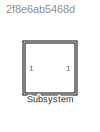
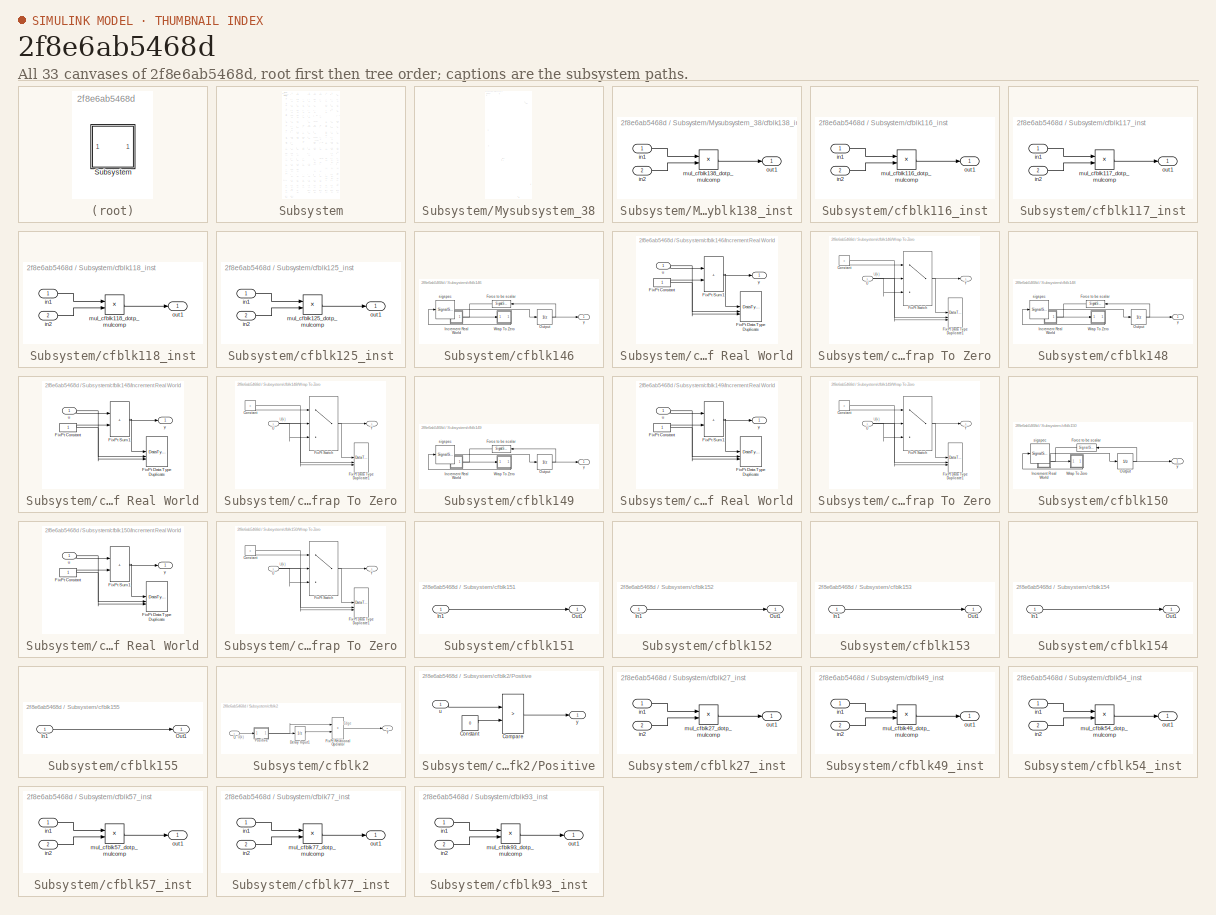
[diagram: thumbnail index - all 33 canvases of the model, root first then tree order]
MODEL slx_2f8e6ab5468d
KIND model
CONFIG AbsTol = auto
CONFIG EnableMultiTasking = off
CONFIG FixedStep = auto
CONFIG MaxStep = auto
CONFIG MinStep = auto
CONFIG RelTol = 1e-3
CONFIG SampleTimeConstraint = Unconstrained
CONFIG SolverName = VariableStepAuto
CONFIG StartTime = 0.0
CONFIG StopTime = 10.0
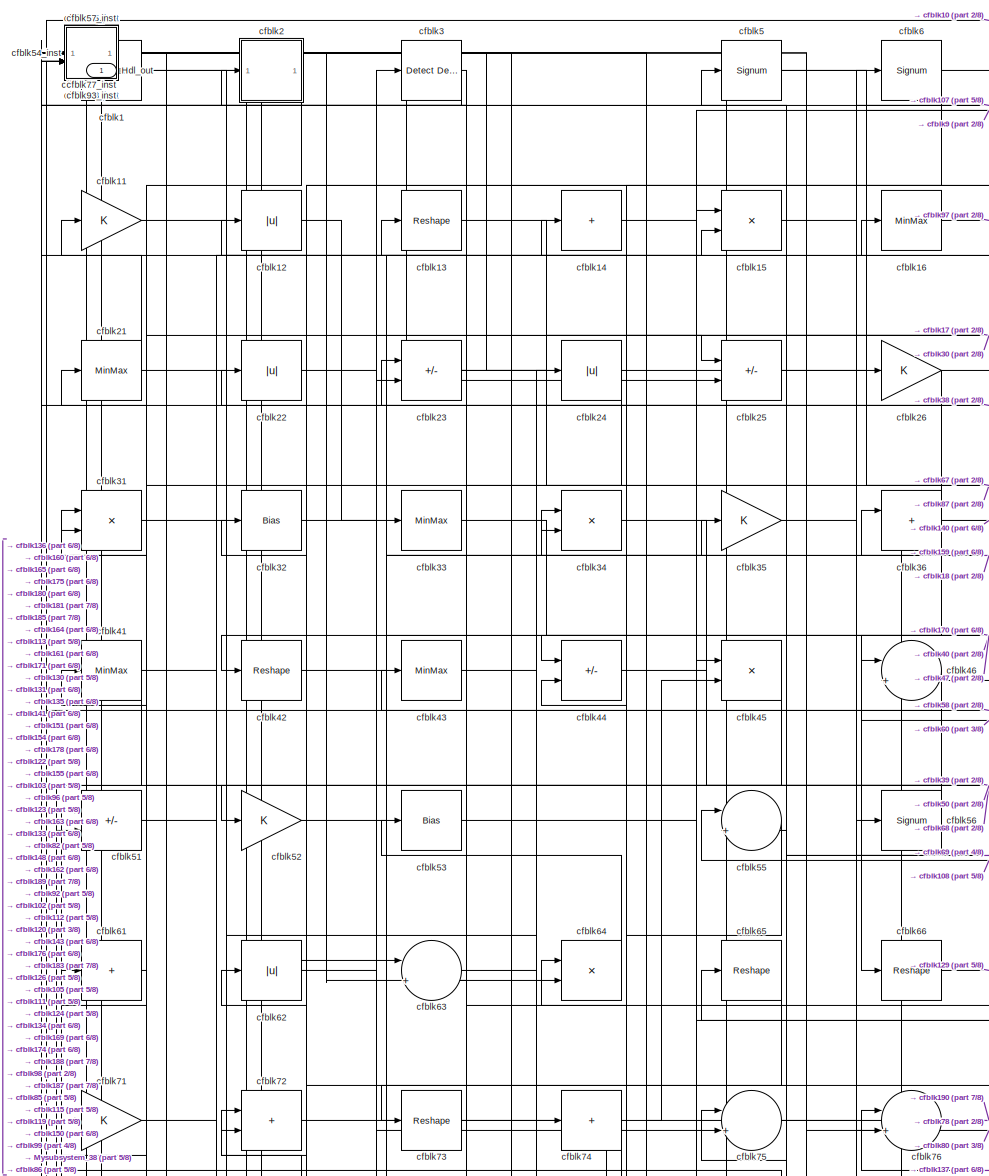
[diagram: Subsystem - part 1/8, top left region]
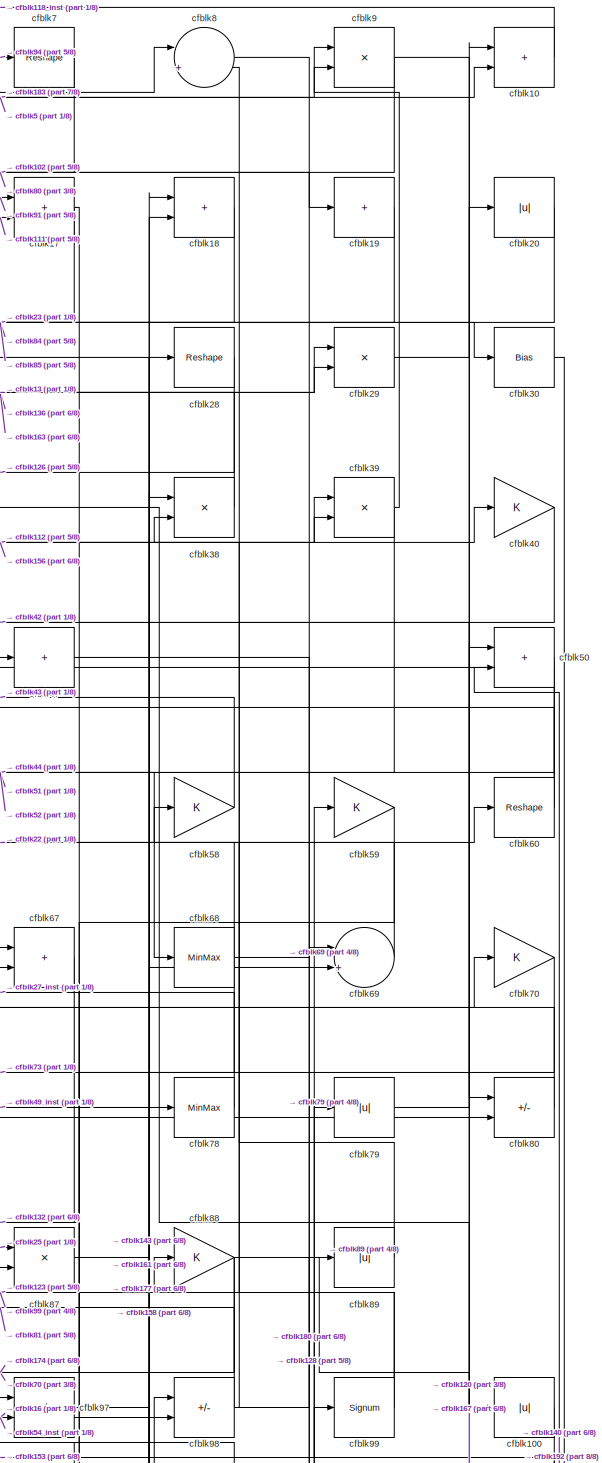
[diagram: Subsystem - part 2/8, top right region]
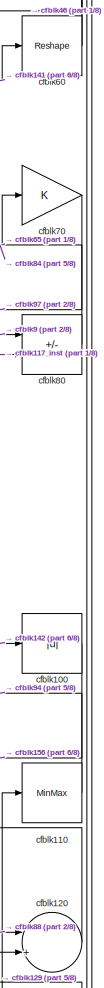
[diagram: Subsystem - part 3/8, middle right region]
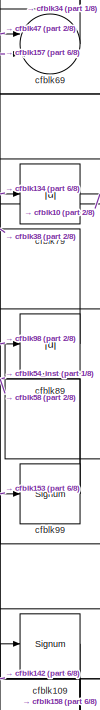
[diagram: Subsystem - part 4/8, middle right region]
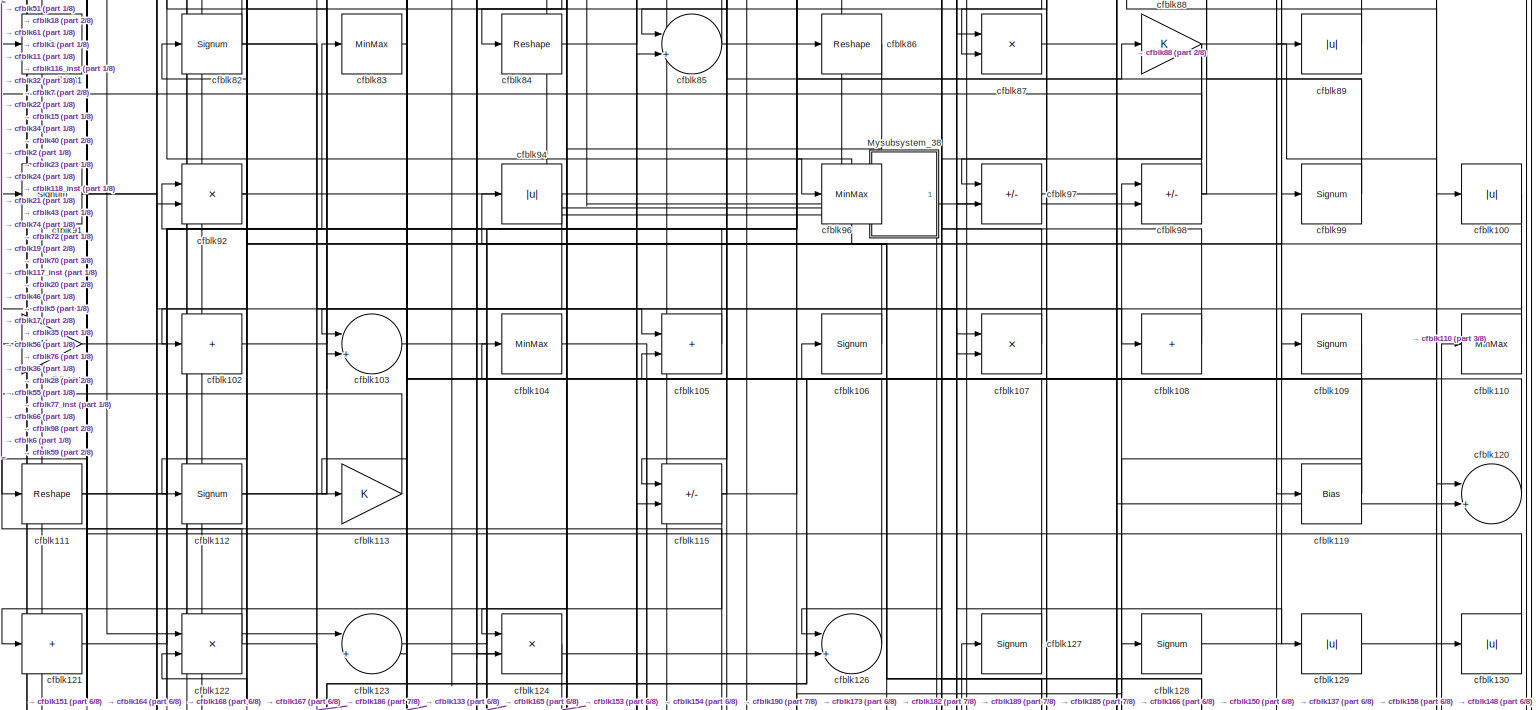
[diagram: Subsystem - part 5/8, full width, middle band]
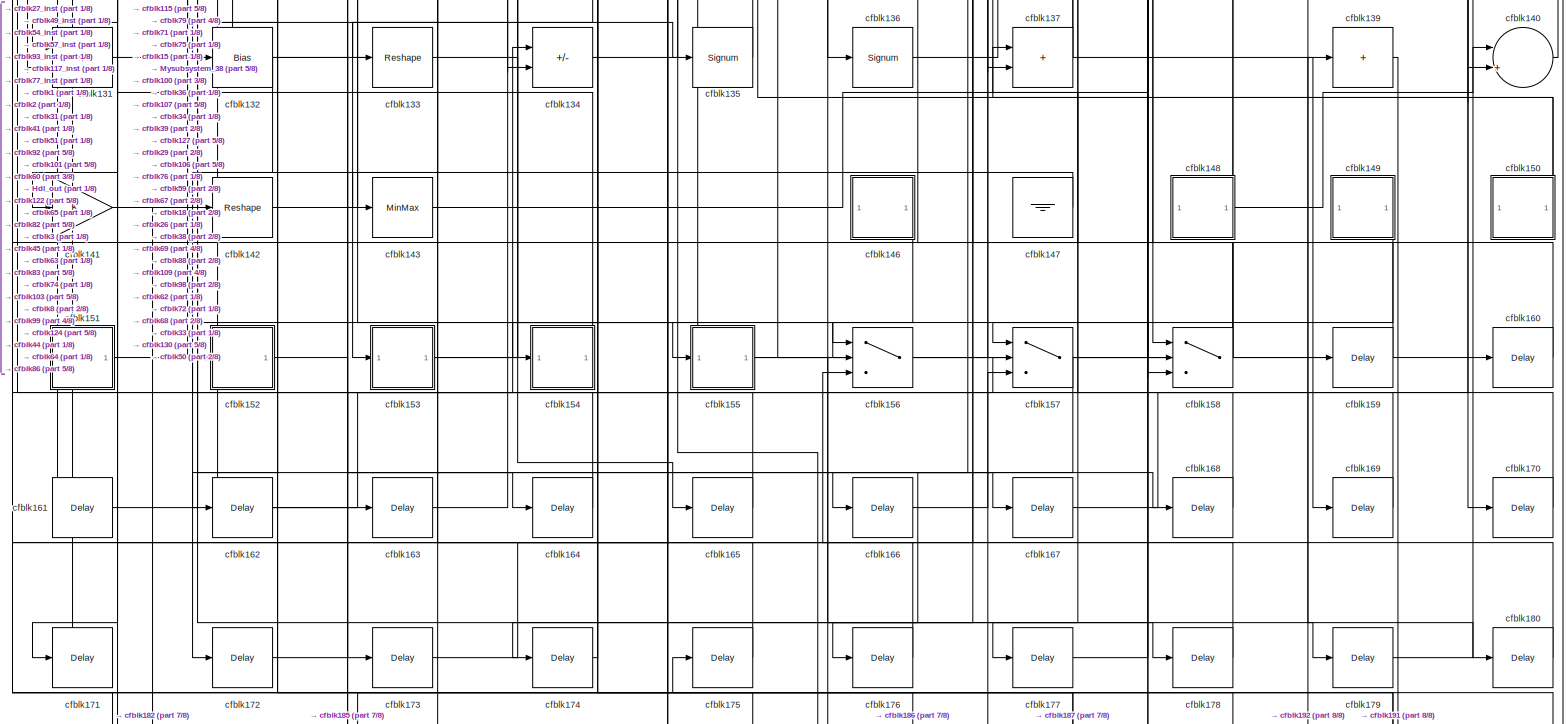
[diagram: Subsystem - part 6/8, full width, bottom band]
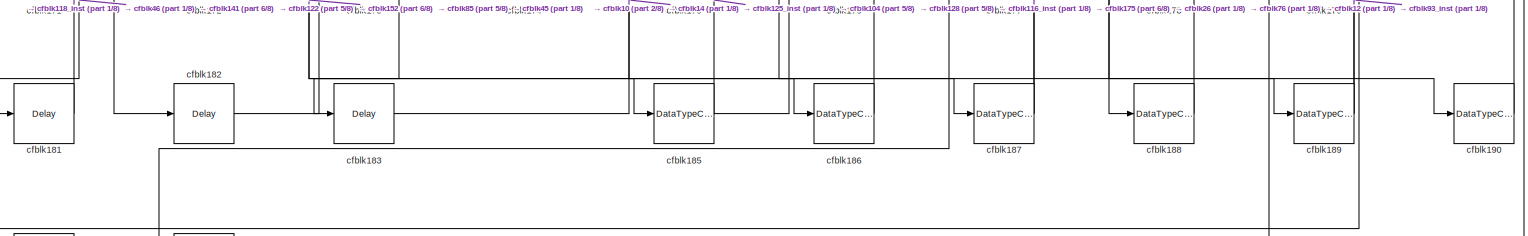
[diagram: Subsystem - part 7/8, full width, bottom band]
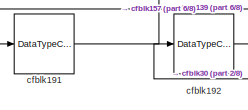
[diagram: Subsystem - part 8/8, bottom left region]
BLOCK [SubSystem] Subsystem
BLOCK [Outport] Subsystem/Hdl_out
  OutDataTypeStr = uint8
  SampleTime = 1
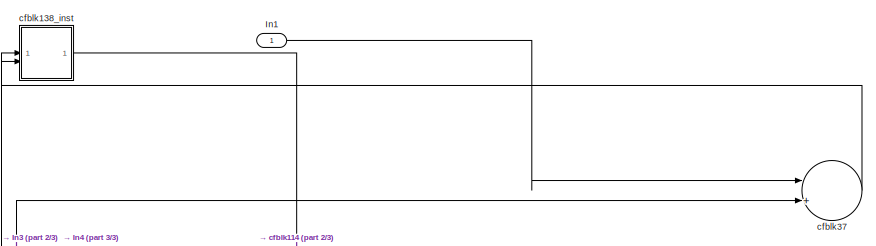
[diagram: Subsystem/Mysubsystem_38 - part 1/3, full width, top band]
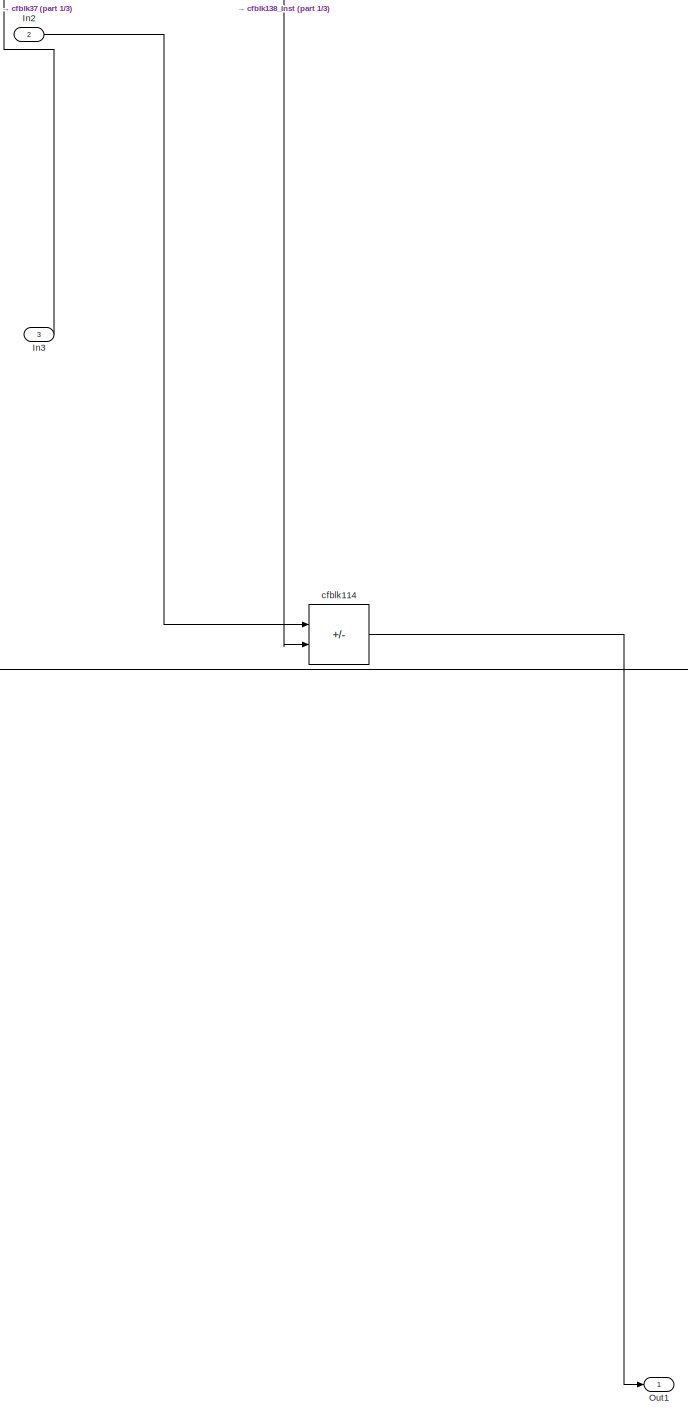
[diagram: Subsystem/Mysubsystem_38 - part 2/3, bottom center region]
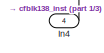
[diagram: Subsystem/Mysubsystem_38 - part 3/3, bottom right region]
BLOCK [SubSystem] Subsystem/Mysubsystem_38
BLOCK [Inport] Subsystem/Mysubsystem_38/In1
  OutDataTypeStr = uint8
  PortDimensions = 1
  SampleTime = 1
BLOCK [Inport] Subsystem/Mysubsystem_38/In2
  OutDataTypeStr = uint8
  Port = 2
  PortDimensions = 1
  SampleTime = 1
BLOCK [Inport] Subsystem/Mysubsystem_38/In3
  OutDataTypeStr = uint8
  Port = 3
  PortDimensions = 1
  SampleTime = 1
BLOCK [Inport] Subsystem/Mysubsystem_38/In4
  OutDataTypeStr = uint8
  Port = 4
  PortDimensions = 1
  SampleTime = 1
BLOCK [Outport] Subsystem/Mysubsystem_38/Out1
  SampleTime = 1
BLOCK [Sum] Subsystem/Mysubsystem_38/cfblk114
  IconShape = rectangular
  Inputs = +-
BLOCK [SubSystem] Subsystem/Mysubsystem_38/cfblk138_inst
BLOCK [Inport] Subsystem/Mysubsystem_38/cfblk138_inst/in1
  OutDataTypeStr = uint8
  SampleTime = 1
BLOCK [Inport] Subsystem/Mysubsystem_38/cfblk138_inst/in2
  OutDataTypeStr = uint8
  Port = 2
  SampleTime = 1
BLOCK [Product] Subsystem/Mysubsystem_38/cfblk138_inst/mul_cfblk138_dotp_mulcomp
  Inputs = **
  OutDataTypeStr = uint16
  SampleTime = 1
BLOCK [Outport] Subsystem/Mysubsystem_38/cfblk138_inst/out1
  OutDataTypeStr = uint16
  SampleTime = 1
BLOCK [Sum] Subsystem/Mysubsystem_38/cfblk37
  Inputs = |++
BLOCK [Reference] Subsystem/cfblk1  REF=simulink/Logic and Bit
Operations/Bit Set
  LibrarySourceBlock = hdlsllib/Logic and Bit\nOperations/Bit Set
  SourceBlock = simulink/Logic and Bit\nOperations/Bit Set
  SourceType = Bit Set
BLOCK [Sum] Subsystem/cfblk10
  IconShape = rectangular
  OutDataTypeStr = uint8
BLOCK [Abs] Subsystem/cfblk100
  OutDataTypeStr = uint8
  SaturateOnIntegerOverflow = off
BLOCK [Gain] Subsystem/cfblk101
  OutDataTypeStr = uint8
BLOCK [Sum] Subsystem/cfblk102
  IconShape = rectangular
  Inputs = +
  OutDataTypeStr = uint8
BLOCK [Sum] Subsystem/cfblk103
  Inputs = |++
  OutDataTypeStr = uint8
BLOCK [MinMax] Subsystem/cfblk104
  OutDataTypeStr = uint8
BLOCK [Sum] Subsystem/cfblk105
  IconShape = rectangular
  OutDataTypeStr = uint8
BLOCK [Signum] Subsystem/cfblk106
BLOCK [Product] Subsystem/cfblk107
  Inputs = */
  OutDataTypeStr = uint8
  RndMeth = Zero
  SaturateOnIntegerOverflow = on
BLOCK [Sum] Subsystem/cfblk108
  IconShape = rectangular
  Inputs = +
  OutDataTypeStr = uint8
BLOCK [Signum] Subsystem/cfblk109
BLOCK [Gain] Subsystem/cfblk11
  OutDataTypeStr = uint8
BLOCK [MinMax] Subsystem/cfblk110
  OutDataTypeStr = uint8
BLOCK [Reshape] Subsystem/cfblk111
BLOCK [Signum] Subsystem/cfblk112
BLOCK [Gain] Subsystem/cfblk113
  OutDataTypeStr = uint8
BLOCK [Sum] Subsystem/cfblk115
  IconShape = rectangular
  Inputs = +-
  OutDataTypeStr = uint8
BLOCK [SubSystem] Subsystem/cfblk116_inst
BLOCK [Inport] Subsystem/cfblk116_inst/in1
  OutDataTypeStr = uint8
  SampleTime = 1
BLOCK [Inport] Subsystem/cfblk116_inst/in2
  OutDataTypeStr = uint8
  Port = 2
  SampleTime = 1
BLOCK [Product] Subsystem/cfblk116_inst/mul_cfblk116_dotp_mulcomp
  Inputs = **
  OutDataTypeStr = uint8
  SampleTime = 1
BLOCK [Outport] Subsystem/cfblk116_inst/out1
  OutDataTypeStr = uint8
  SampleTime = 1
BLOCK [SubSystem] Subsystem/cfblk117_inst
BLOCK [Inport] Subsystem/cfblk117_inst/in1
  OutDataTypeStr = uint8
  SampleTime = 1
BLOCK [Inport] Subsystem/cfblk117_inst/in2
  OutDataTypeStr = uint8
  Port = 2
  SampleTime = 1
BLOCK [Product] Subsystem/cfblk117_inst/mul_cfblk117_dotp_mulcomp
  Inputs = **
  OutDataTypeStr = uint8
  SampleTime = 1
BLOCK [Outport] Subsystem/cfblk117_inst/out1
  OutDataTypeStr = uint8
  SampleTime = 1
BLOCK [SubSystem] Subsystem/cfblk118_inst
BLOCK [Inport] Subsystem/cfblk118_inst/in1
  OutDataTypeStr = uint8
  SampleTime = 1
BLOCK [Inport] Subsystem/cfblk118_inst/in2
  OutDataTypeStr = uint8
  Port = 2
  SampleTime = 1
BLOCK [Product] Subsystem/cfblk118_inst/mul_cfblk118_dotp_mulcomp
  Inputs = **
  OutDataTypeStr = uint8
  SampleTime = 1
BLOCK [Outport] Subsystem/cfblk118_inst/out1
  OutDataTypeStr = uint8
  SampleTime = 1
BLOCK [Bias] Subsystem/cfblk119
  Bias = 0.0
  SaturateOnIntegerOverflow = off
BLOCK [Abs] Subsystem/cfblk12
  OutDataTypeStr = uint8
  SaturateOnIntegerOverflow = off
BLOCK [Sum] Subsystem/cfblk120
  Inputs = |++
  OutDataTypeStr = uint8
BLOCK [Sum] Subsystem/cfblk121
  IconShape = rectangular
  Inputs = +
  OutDataTypeStr = uint8
BLOCK [Product] Subsystem/cfblk122
  Inputs = */
  OutDataTypeStr = uint8
  RndMeth = Zero
  SaturateOnIntegerOverflow = on
BLOCK [Sum] Subsystem/cfblk123
  Inputs = |++
  OutDataTypeStr = uint8
BLOCK [Product] Subsystem/cfblk124
  Inputs = */
  OutDataTypeStr = uint8
  RndMeth = Zero
  SaturateOnIntegerOverflow = on
BLOCK [SubSystem] Subsystem/cfblk125_inst
BLOCK [Inport] Subsystem/cfblk125_inst/in1
  OutDataTypeStr = uint8
  SampleTime = 1
BLOCK [Inport] Subsystem/cfblk125_inst/in2
  OutDataTypeStr = uint8
  Port = 2
  SampleTime = 1
BLOCK [Product] Subsystem/cfblk125_inst/mul_cfblk125_dotp_mulcomp
  Inputs = **
  OutDataTypeStr = uint8
  SampleTime = 1
BLOCK [Outport] Subsystem/cfblk125_inst/out1
  OutDataTypeStr = uint8
  SampleTime = 1
BLOCK [Sum] Subsystem/cfblk126
  Inputs = |++
  OutDataTypeStr = uint8
BLOCK [Signum] Subsystem/cfblk127
BLOCK [Signum] Subsystem/cfblk128
BLOCK [Abs] Subsystem/cfblk129
  OutDataTypeStr = uint8
  SaturateOnIntegerOverflow = off
BLOCK [Reshape] Subsystem/cfblk13
BLOCK [Abs] Subsystem/cfblk130
  OutDataTypeStr = uint8
  SaturateOnIntegerOverflow = off
BLOCK [Sum] Subsystem/cfblk131
  IconShape = rectangular
  Inputs = +-
  OutDataTypeStr = uint8
BLOCK [Bias] Subsystem/cfblk132
  Bias = 0.0
  SaturateOnIntegerOverflow = off
BLOCK [Reshape] Subsystem/cfblk133
BLOCK [Sum] Subsystem/cfblk134
  IconShape = rectangular
  Inputs = +-
  OutDataTypeStr = uint8
BLOCK [Signum] Subsystem/cfblk135
BLOCK [Signum] Subsystem/cfblk136
BLOCK [Sum] Subsystem/cfblk137
  IconShape = rectangular
  OutDataTypeStr = uint8
BLOCK [Sum] Subsystem/cfblk139
  IconShape = rectangular
  Inputs = +
  OutDataTypeStr = uint8
BLOCK [Sum] Subsystem/cfblk14
  IconShape = rectangular
  Inputs = +
  OutDataTypeStr = uint8
BLOCK [Sum] Subsystem/cfblk140
  Inputs = |++
  OutDataTypeStr = uint8
BLOCK [Gain] Subsystem/cfblk141
  OutDataTypeStr = uint8
BLOCK [Reshape] Subsystem/cfblk142
BLOCK [MinMax] Subsystem/cfblk143
  OutDataTypeStr = uint8
BLOCK [SubSystem] Subsystem/cfblk146
BLOCK [SignalSpecification] Subsystem/cfblk146/Force to be scalar
  Dimensions = 1
  DisableCoverage = on
BLOCK [SubSystem] Subsystem/cfblk146/Increment Real World
BLOCK [Constant] Subsystem/cfblk146/Increment Real World/FixPt Constant
  DisableCoverage = on
  OutDataTypeStr = Inherit: Inherit via back propagation
  SampleTime = -1
BLOCK [DataTypeDuplicate] Subsystem/cfblk146/Increment Real World/FixPt Data Type Duplicate
  DisableCoverage = on
  NumInputPorts = 3
BLOCK [Sum] Subsystem/cfblk146/Increment Real World/FixPt Sum1
  IconShape = rectangular
  InputSameDT = on
  LockScale = on
  OutDataTypeStr = Inherit: Inherit via back propagation
BLOCK [Inport] Subsystem/cfblk146/Increment Real World/u
  OutDataTypeStr = uint8
  SampleTime = 1
BLOCK [Outport] Subsystem/cfblk146/Increment Real World/y
  SampleTime = 1
BLOCK [UnitDelay] Subsystem/cfblk146/Output
  HasFrameUpgradeWarning = on
  InitialCondition = 0.0
  SampleTime = tsamp
BLOCK [SubSystem] Subsystem/cfblk146/Wrap To Zero
BLOCK [Constant] Subsystem/cfblk146/Wrap To Zero/Constant
  DisableCoverage = on
  OutDataTypeStr = Inherit: Inherit via back propagation
  SampleTime = -1
  Value = 0
BLOCK [DataTypeDuplicate] Subsystem/cfblk146/Wrap To Zero/FixPt Data Type Duplicate1
  DisableCoverage = on
  NumInputPorts = 3
BLOCK [Switch] Subsystem/cfblk146/Wrap To Zero/FixPt Switch
  Criteria = u2 > Threshold
  InputSameDT = off
  OutDataTypeStr = Inherit: Inherit via back propagation
  SaturateOnIntegerOverflow = off
  Threshold = Threshold
  ZeroCross = off
BLOCK [Inport] Subsystem/cfblk146/Wrap To Zero/U
  OutDataTypeStr = uint8
  SampleTime = 1
BLOCK [Outport] Subsystem/cfblk146/Wrap To Zero/Y
  SampleTime = 1
BLOCK [SignalSpecification] Subsystem/cfblk146/sigspec
  Dimensions = 1
  OutDataTypeStr = uint8
BLOCK [Outport] Subsystem/cfblk146/y
  SampleTime = 1
BLOCK [Ground] Subsystem/cfblk147
BLOCK [SubSystem] Subsystem/cfblk148
BLOCK [SignalSpecification] Subsystem/cfblk148/Force to be scalar
  Dimensions = 1
  DisableCoverage = on
BLOCK [SubSystem] Subsystem/cfblk148/Increment Real World
BLOCK [Constant] Subsystem/cfblk148/Increment Real World/FixPt Constant
  DisableCoverage = on
  OutDataTypeStr = Inherit: Inherit via back propagation
  SampleTime = -1
BLOCK [DataTypeDuplicate] Subsystem/cfblk148/Increment Real World/FixPt Data Type Duplicate
  DisableCoverage = on
  NumInputPorts = 3
BLOCK [Sum] Subsystem/cfblk148/Increment Real World/FixPt Sum1
  IconShape = rectangular
  InputSameDT = on
  LockScale = on
  OutDataTypeStr = Inherit: Inherit via back propagation
BLOCK [Inport] Subsystem/cfblk148/Increment Real World/u
  OutDataTypeStr = uint8
  SampleTime = 1
BLOCK [Outport] Subsystem/cfblk148/Increment Real World/y
  SampleTime = 1
BLOCK [UnitDelay] Subsystem/cfblk148/Output
  HasFrameUpgradeWarning = on
  InitialCondition = 0.0
  SampleTime = tsamp
BLOCK [SubSystem] Subsystem/cfblk148/Wrap To Zero
BLOCK [Constant] Subsystem/cfblk148/Wrap To Zero/Constant
  DisableCoverage = on
  OutDataTypeStr = Inherit: Inherit via back propagation
  SampleTime = -1
  Value = 0
BLOCK [DataTypeDuplicate] Subsystem/cfblk148/Wrap To Zero/FixPt Data Type Duplicate1
  DisableCoverage = on
  NumInputPorts = 3
BLOCK [Switch] Subsystem/cfblk148/Wrap To Zero/FixPt Switch
  Criteria = u2 > Threshold
  InputSameDT = off
  OutDataTypeStr = Inherit: Inherit via back propagation
  SaturateOnIntegerOverflow = off
  Threshold = Threshold
  ZeroCross = off
BLOCK [Inport] Subsystem/cfblk148/Wrap To Zero/U
  OutDataTypeStr = uint8
  SampleTime = 1
BLOCK [Outport] Subsystem/cfblk148/Wrap To Zero/Y
  SampleTime = 1
BLOCK [SignalSpecification] Subsystem/cfblk148/sigspec
  Dimensions = 1
  OutDataTypeStr = uint8
BLOCK [Outport] Subsystem/cfblk148/y
  SampleTime = 1
BLOCK [SubSystem] Subsystem/cfblk149
BLOCK [SignalSpecification] Subsystem/cfblk149/Force to be scalar
  Dimensions = 1
  DisableCoverage = on
BLOCK [SubSystem] Subsystem/cfblk149/Increment Real World
BLOCK [Constant] Subsystem/cfblk149/Increment Real World/FixPt Constant
  DisableCoverage = on
  OutDataTypeStr = Inherit: Inherit via back propagation
  SampleTime = -1
BLOCK [DataTypeDuplicate] Subsystem/cfblk149/Increment Real World/FixPt Data Type Duplicate
  DisableCoverage = on
  NumInputPorts = 3
BLOCK [Sum] Subsystem/cfblk149/Increment Real World/FixPt Sum1
  IconShape = rectangular
  InputSameDT = on
  LockScale = on
  OutDataTypeStr = Inherit: Inherit via back propagation
BLOCK [Inport] Subsystem/cfblk149/Increment Real World/u
  OutDataTypeStr = uint8
  SampleTime = 1
BLOCK [Outport] Subsystem/cfblk149/Increment Real World/y
  SampleTime = 1
BLOCK [UnitDelay] Subsystem/cfblk149/Output
  HasFrameUpgradeWarning = on
  InitialCondition = 0.0
  SampleTime = tsamp
BLOCK [SubSystem] Subsystem/cfblk149/Wrap To Zero
BLOCK [Constant] Subsystem/cfblk149/Wrap To Zero/Constant
  DisableCoverage = on
  OutDataTypeStr = Inherit: Inherit via back propagation
  SampleTime = -1
  Value = 0
BLOCK [DataTypeDuplicate] Subsystem/cfblk149/Wrap To Zero/FixPt Data Type Duplicate1
  DisableCoverage = on
  NumInputPorts = 3
BLOCK [Switch] Subsystem/cfblk149/Wrap To Zero/FixPt Switch
  Criteria = u2 > Threshold
  InputSameDT = off
  OutDataTypeStr = Inherit: Inherit via back propagation
  SaturateOnIntegerOverflow = off
  Threshold = Threshold
  ZeroCross = off
BLOCK [Inport] Subsystem/cfblk149/Wrap To Zero/U
  OutDataTypeStr = uint8
  SampleTime = 1
BLOCK [Outport] Subsystem/cfblk149/Wrap To Zero/Y
  SampleTime = 1
BLOCK [SignalSpecification] Subsystem/cfblk149/sigspec
  Dimensions = 1
  OutDataTypeStr = uint8
BLOCK [Outport] Subsystem/cfblk149/y
  SampleTime = 1
BLOCK [Product] Subsystem/cfblk15
  Inputs = */
  OutDataTypeStr = uint8
  RndMeth = Zero
  SaturateOnIntegerOverflow = on
BLOCK [SubSystem] Subsystem/cfblk150
BLOCK [SignalSpecification] Subsystem/cfblk150/Force to be scalar
  Dimensions = 1
  DisableCoverage = on
BLOCK [SubSystem] Subsystem/cfblk150/Increment Real World
BLOCK [Constant] Subsystem/cfblk150/Increment Real World/FixPt Constant
  DisableCoverage = on
  OutDataTypeStr = Inherit: Inherit via back propagation
  SampleTime = -1
BLOCK [DataTypeDuplicate] Subsystem/cfblk150/Increment Real World/FixPt Data Type Duplicate
  DisableCoverage = on
  NumInputPorts = 3
BLOCK [Sum] Subsystem/cfblk150/Increment Real World/FixPt Sum1
  IconShape = rectangular
  InputSameDT = on
  LockScale = on
  OutDataTypeStr = Inherit: Inherit via back propagation
BLOCK [Inport] Subsystem/cfblk150/Increment Real World/u
  OutDataTypeStr = uint16
  SampleTime = 1
BLOCK [Outport] Subsystem/cfblk150/Increment Real World/y
  SampleTime = 1
BLOCK [UnitDelay] Subsystem/cfblk150/Output
  HasFrameUpgradeWarning = on
  InitialCondition = 0.0
  SampleTime = tsamp
BLOCK [SubSystem] Subsystem/cfblk150/Wrap To Zero
BLOCK [Constant] Subsystem/cfblk150/Wrap To Zero/Constant
  DisableCoverage = on
  OutDataTypeStr = Inherit: Inherit via back propagation
  SampleTime = -1
  Value = 0
BLOCK [DataTypeDuplicate] Subsystem/cfblk150/Wrap To Zero/FixPt Data Type Duplicate1
  DisableCoverage = on
  NumInputPorts = 3
BLOCK [Switch] Subsystem/cfblk150/Wrap To Zero/FixPt Switch
  Criteria = u2 > Threshold
  InputSameDT = off
  OutDataTypeStr = Inherit: Inherit via back propagation
  SaturateOnIntegerOverflow = off
  Threshold = Threshold
  ZeroCross = off
BLOCK [Inport] Subsystem/cfblk150/Wrap To Zero/U
  OutDataTypeStr = uint16
  SampleTime = 1
BLOCK [Outport] Subsystem/cfblk150/Wrap To Zero/Y
  SampleTime = 1
BLOCK [SignalSpecification] Subsystem/cfblk150/sigspec
  Dimensions = 1
  OutDataTypeStr = uint16
BLOCK [Outport] Subsystem/cfblk150/y
  SampleTime = 1
BLOCK [SubSystem] Subsystem/cfblk151
BLOCK [Inport] Subsystem/cfblk151/In1
  OutDataTypeStr = uint8
  PortDimensions = 1
  SampleTime = 1
BLOCK [Outport] Subsystem/cfblk151/Out1
  SampleTime = 1
BLOCK [SubSystem] Subsystem/cfblk152
BLOCK [Inport] Subsystem/cfblk152/In1
  OutDataTypeStr = uint8
  PortDimensions = 1
  SampleTime = 1
BLOCK [Outport] Subsystem/cfblk152/Out1
  SampleTime = 1
BLOCK [SubSystem] Subsystem/cfblk153
BLOCK [Inport] Subsystem/cfblk153/In1
  OutDataTypeStr = uint8
  PortDimensions = 1
  SampleTime = 1
BLOCK [Outport] Subsystem/cfblk153/Out1
  SampleTime = 1
BLOCK [SubSystem] Subsystem/cfblk154
BLOCK [Inport] Subsystem/cfblk154/In1
  OutDataTypeStr = uint8
  PortDimensions = 1
  SampleTime = 1
BLOCK [Outport] Subsystem/cfblk154/Out1
  SampleTime = 1
BLOCK [SubSystem] Subsystem/cfblk155
BLOCK [Inport] Subsystem/cfblk155/In1
  OutDataTypeStr = uint8
  PortDimensions = 1
  SampleTime = 1
BLOCK [Outport] Subsystem/cfblk155/Out1
  SampleTime = 1
BLOCK [Switch] Subsystem/cfblk156
  InputSameDT = off
  OutDataTypeStr = uint8
  SaturateOnIntegerOverflow = off
BLOCK [Switch] Subsystem/cfblk157
  InputSameDT = off
  OutDataTypeStr = uint8
  SaturateOnIntegerOverflow = off
BLOCK [Switch] Subsystem/cfblk158
  InputSameDT = off
  OutDataTypeStr = uint8
  SaturateOnIntegerOverflow = off
BLOCK [Delay] Subsystem/cfblk159
  InputPortMap = u0
  SampleTime = 1
BLOCK [MinMax] Subsystem/cfblk16
  OutDataTypeStr = uint8
BLOCK [Delay] Subsystem/cfblk160
  InputPortMap = u0
  SampleTime = 1
BLOCK [Delay] Subsystem/cfblk161
  InputPortMap = u0
  SampleTime = 1
BLOCK [Delay] Subsystem/cfblk162
  InputPortMap = u0
  SampleTime = 1
BLOCK [Delay] Subsystem/cfblk163
  InputPortMap = u0
  SampleTime = 1
BLOCK [Delay] Subsystem/cfblk164
  InputPortMap = u0
  SampleTime = 1
BLOCK [Delay] Subsystem/cfblk165
  InputPortMap = u0
  SampleTime = 1
BLOCK [Delay] Subsystem/cfblk166
  InputPortMap = u0
  SampleTime = 1
BLOCK [Delay] Subsystem/cfblk167
  InputPortMap = u0
  SampleTime = 1
BLOCK [Delay] Subsystem/cfblk168
  InputPortMap = u0
  SampleTime = 1
BLOCK [Delay] Subsystem/cfblk169
  InputPortMap = u0
  SampleTime = 1
BLOCK [Sum] Subsystem/cfblk17
  IconShape = rectangular
  OutDataTypeStr = uint8
BLOCK [Delay] Subsystem/cfblk170
  InputPortMap = u0
  SampleTime = 1
BLOCK [Delay] Subsystem/cfblk171
  InputPortMap = u0
  SampleTime = 1
BLOCK [Delay] Subsystem/cfblk172
  InputPortMap = u0
  SampleTime = 1
BLOCK [Delay] Subsystem/cfblk173
  InputPortMap = u0
  SampleTime = 1
BLOCK [Delay] Subsystem/cfblk174
  InputPortMap = u0
  SampleTime = 1
BLOCK [Delay] Subsystem/cfblk175
  InputPortMap = u0
  SampleTime = 1
BLOCK [Delay] Subsystem/cfblk176
  InputPortMap = u0
  SampleTime = 1
BLOCK [Delay] Subsystem/cfblk177
  InputPortMap = u0
  SampleTime = 1
BLOCK [Delay] Subsystem/cfblk178
  InputPortMap = u0
  SampleTime = 1
BLOCK [Delay] Subsystem/cfblk179
  InputPortMap = u0
  SampleTime = 1
BLOCK [Sum] Subsystem/cfblk18
  IconShape = rectangular
  OutDataTypeStr = uint8
BLOCK [Delay] Subsystem/cfblk180
  InputPortMap = u0
  SampleTime = 1
BLOCK [Delay] Subsystem/cfblk181
  InputPortMap = u0
  SampleTime = 1
BLOCK [Delay] Subsystem/cfblk182
  InputPortMap = u0
  SampleTime = 1
BLOCK [Delay] Subsystem/cfblk183
  InputPortMap = u0
  SampleTime = 1
BLOCK [DataTypeConversion] Subsystem/cfblk185
  OutDataTypeStr = uint8
  RndMeth = Floor
  SaturateOnIntegerOverflow = off
BLOCK [DataTypeConversion] Subsystem/cfblk186
  OutDataTypeStr = uint8
  RndMeth = Floor
  SaturateOnIntegerOverflow = off
BLOCK [DataTypeConversion] Subsystem/cfblk187
  OutDataTypeStr = uint8
  RndMeth = Floor
  SaturateOnIntegerOverflow = off
BLOCK [DataTypeConversion] Subsystem/cfblk188
  OutDataTypeStr = uint8
  RndMeth = Floor
  SaturateOnIntegerOverflow = off
BLOCK [DataTypeConversion] Subsystem/cfblk189
  OutDataTypeStr = uint8
  RndMeth = Floor
  SaturateOnIntegerOverflow = off
BLOCK [Sum] Subsystem/cfblk19
  IconShape = rectangular
  Inputs = +
  OutDataTypeStr = uint8
BLOCK [DataTypeConversion] Subsystem/cfblk190
  OutDataTypeStr = uint8
  RndMeth = Floor
  SaturateOnIntegerOverflow = off
BLOCK [DataTypeConversion] Subsystem/cfblk191
  OutDataTypeStr = uint8
  RndMeth = Floor
  SaturateOnIntegerOverflow = off
BLOCK [DataTypeConversion] Subsystem/cfblk192
  OutDataTypeStr = uint8
  RndMeth = Floor
  SaturateOnIntegerOverflow = off
BLOCK [SubSystem] Subsystem/cfblk2
BLOCK [UnitDelay] Subsystem/cfblk2/Delay Input1
  Description = Store in Global RAM
  DisableCoverage = on
  HasFrameUpgradeWarning = on
  InitialCondition = vinit
  SampleTime = -1
BLOCK [RelationalOperator] Subsystem/cfblk2/FixPt Relational Operator
  InputSameDT = off
  Operator = >
  OutDataTypeStr = fixdt(0, 8)
  ZeroCross = off
BLOCK [SubSystem] Subsystem/cfblk2/Positive
BLOCK [RelationalOperator] Subsystem/cfblk2/Positive/Compare
  Operator = >
  OutDataTypeStr = boolean
  ZeroCross = off
BLOCK [Constant] Subsystem/cfblk2/Positive/Constant
  DisableCoverage = on
  OutDataTypeStr = Inherit: Inherit via back propagation
  PreserveConstantTs = on
  SampleTime = -1
  Value = 0
BLOCK [Inport] Subsystem/cfblk2/Positive/u
  OutDataTypeStr = uint8
  SampleTime = 1
BLOCK [Outport] Subsystem/cfblk2/Positive/y
  SampleTime = 1
BLOCK [Inport] Subsystem/cfblk2/U
  OutDataTypeStr = uint8
  SampleTime = 1
BLOCK [Outport] Subsystem/cfblk2/Y
  SampleTime = 1
BLOCK [Abs] Subsystem/cfblk20
  OutDataTypeStr = uint8
  SaturateOnIntegerOverflow = off
BLOCK [MinMax] Subsystem/cfblk21
  OutDataTypeStr = uint8
BLOCK [Abs] Subsystem/cfblk22
  OutDataTypeStr = uint8
  SaturateOnIntegerOverflow = off
BLOCK [Sum] Subsystem/cfblk23
  IconShape = rectangular
  Inputs = +-
  OutDataTypeStr = uint8
BLOCK [Abs] Subsystem/cfblk24
  OutDataTypeStr = uint8
  SaturateOnIntegerOverflow = off
BLOCK [Sum] Subsystem/cfblk25
  IconShape = rectangular
  Inputs = +-
  OutDataTypeStr = uint8
BLOCK [Gain] Subsystem/cfblk26
  OutDataTypeStr = uint8
BLOCK [SubSystem] Subsystem/cfblk27_inst
BLOCK [Inport] Subsystem/cfblk27_inst/in1
  OutDataTypeStr = uint8
  SampleTime = 1
BLOCK [Inport] Subsystem/cfblk27_inst/in2
  OutDataTypeStr = uint8
  Port = 2
  SampleTime = 1
BLOCK [Product] Subsystem/cfblk27_inst/mul_cfblk27_dotp_mulcomp
  Inputs = **
  OutDataTypeStr = uint8
  SampleTime = 1
BLOCK [Outport] Subsystem/cfblk27_inst/out1
  OutDataTypeStr = uint8
  SampleTime = 1
BLOCK [Reshape] Subsystem/cfblk28
BLOCK [Product] Subsystem/cfblk29
  Inputs = */
  OutDataTypeStr = uint8
  RndMeth = Zero
  SaturateOnIntegerOverflow = on
BLOCK [Reference] Subsystem/cfblk3  REF=simulink/Logic and Bit
Operations/Detect
Decrease
  LibrarySourceBlock = hdlsllib/Logic and Bit\nOperations/Detect\nDecrease
  SourceBlock = simulink/Logic and Bit\nOperations/Detect\nDecrease
  SourceType = Detect Decrease
BLOCK [Bias] Subsystem/cfblk30
  Bias = 0.0
  SaturateOnIntegerOverflow = off
BLOCK [Product] Subsystem/cfblk31
  Inputs = */
  OutDataTypeStr = uint8
  RndMeth = Zero
  SaturateOnIntegerOverflow = on
BLOCK [Bias] Subsystem/cfblk32
  Bias = 0.0
  SaturateOnIntegerOverflow = off
BLOCK [MinMax] Subsystem/cfblk33
  OutDataTypeStr = uint8
BLOCK [Product] Subsystem/cfblk34
  Inputs = */
  OutDataTypeStr = uint8
  RndMeth = Zero
  SaturateOnIntegerOverflow = on
BLOCK [Gain] Subsystem/cfblk35
  OutDataTypeStr = uint8
BLOCK [Sum] Subsystem/cfblk36
  IconShape = rectangular
  OutDataTypeStr = uint8
BLOCK [Product] Subsystem/cfblk38
  Inputs = */
  OutDataTypeStr = uint8
  RndMeth = Zero
  SaturateOnIntegerOverflow = on
BLOCK [Product] Subsystem/cfblk39
  Inputs = */
  OutDataTypeStr = uint8
  RndMeth = Zero
  SaturateOnIntegerOverflow = on
BLOCK [Gain] Subsystem/cfblk40
  OutDataTypeStr = uint8
BLOCK [MinMax] Subsystem/cfblk41
  OutDataTypeStr = uint8
BLOCK [Reshape] Subsystem/cfblk42
BLOCK [MinMax] Subsystem/cfblk43
  OutDataTypeStr = uint8
BLOCK [Sum] Subsystem/cfblk44
  IconShape = rectangular
  Inputs = +-
  OutDataTypeStr = uint8
BLOCK [Product] Subsystem/cfblk45
  Inputs = */
  OutDataTypeStr = uint8
  RndMeth = Zero
  SaturateOnIntegerOverflow = on
BLOCK [Sum] Subsystem/cfblk46
  Inputs = |++
  OutDataTypeStr = uint8
BLOCK [Sum] Subsystem/cfblk47
  IconShape = rectangular
  Inputs = +
  OutDataTypeStr = uint8
BLOCK [SubSystem] Subsystem/cfblk49_inst
BLOCK [Inport] Subsystem/cfblk49_inst/in1
  OutDataTypeStr = uint8
  SampleTime = 1
BLOCK [Inport] Subsystem/cfblk49_inst/in2
  OutDataTypeStr = uint8
  Port = 2
  SampleTime = 1
BLOCK [Product] Subsystem/cfblk49_inst/mul_cfblk49_dotp_mulcomp
  Inputs = **
  OutDataTypeStr = uint8
  SampleTime = 1
BLOCK [Outport] Subsystem/cfblk49_inst/out1
  OutDataTypeStr = uint8
  SampleTime = 1
BLOCK [Signum] Subsystem/cfblk5
BLOCK [Sum] Subsystem/cfblk50
  IconShape = rectangular
  OutDataTypeStr = uint8
BLOCK [Sum] Subsystem/cfblk51
  IconShape = rectangular
  Inputs = +-
  OutDataTypeStr = uint8
BLOCK [Gain] Subsystem/cfblk52
  OutDataTypeStr = uint8
BLOCK [Bias] Subsystem/cfblk53
  Bias = 0.0
  SaturateOnIntegerOverflow = off
BLOCK [SubSystem] Subsystem/cfblk54_inst
BLOCK [Inport] Subsystem/cfblk54_inst/in1
  OutDataTypeStr = uint8
  SampleTime = 1
BLOCK [Inport] Subsystem/cfblk54_inst/in2
  OutDataTypeStr = uint8
  Port = 2
  SampleTime = 1
BLOCK [Product] Subsystem/cfblk54_inst/mul_cfblk54_dotp_mulcomp
  Inputs = **
  OutDataTypeStr = uint8
  SampleTime = 1
BLOCK [Outport] Subsystem/cfblk54_inst/out1
  OutDataTypeStr = uint8
  SampleTime = 1
BLOCK [Sum] Subsystem/cfblk55
  Inputs = |++
  OutDataTypeStr = uint8
BLOCK [Signum] Subsystem/cfblk56
BLOCK [SubSystem] Subsystem/cfblk57_inst
BLOCK [Inport] Subsystem/cfblk57_inst/in1
  OutDataTypeStr = uint8
  SampleTime = 1
BLOCK [Inport] Subsystem/cfblk57_inst/in2
  OutDataTypeStr = uint8
  Port = 2
  SampleTime = 1
BLOCK [Product] Subsystem/cfblk57_inst/mul_cfblk57_dotp_mulcomp
  Inputs = **
  OutDataTypeStr = uint8
  SampleTime = 1
BLOCK [Outport] Subsystem/cfblk57_inst/out1
  OutDataTypeStr = uint8
  SampleTime = 1
BLOCK [Gain] Subsystem/cfblk58
  OutDataTypeStr = uint8
BLOCK [Gain] Subsystem/cfblk59
  OutDataTypeStr = uint8
BLOCK [Signum] Subsystem/cfblk6
BLOCK [Reshape] Subsystem/cfblk60
BLOCK [Sum] Subsystem/cfblk61
  IconShape = rectangular
  Inputs = +
  OutDataTypeStr = uint8
BLOCK [Abs] Subsystem/cfblk62
  OutDataTypeStr = uint8
  SaturateOnIntegerOverflow = off
BLOCK [Sum] Subsystem/cfblk63
  Inputs = |++
  OutDataTypeStr = uint8
BLOCK [Product] Subsystem/cfblk64
  Inputs = */
  OutDataTypeStr = uint8
  RndMeth = Zero
  SaturateOnIntegerOverflow = on
BLOCK [Reshape] Subsystem/cfblk65
BLOCK [Reshape] Subsystem/cfblk66
BLOCK [Sum] Subsystem/cfblk67
  IconShape = rectangular
  OutDataTypeStr = uint8
BLOCK [MinMax] Subsystem/cfblk68
  OutDataTypeStr = uint8
BLOCK [Sum] Subsystem/cfblk69
  Inputs = |++
  OutDataTypeStr = uint8
BLOCK [Reshape] Subsystem/cfblk7
BLOCK [Gain] Subsystem/cfblk70
  OutDataTypeStr = uint8
BLOCK [Gain] Subsystem/cfblk71
  OutDataTypeStr = uint8
BLOCK [Sum] Subsystem/cfblk72
  IconShape = rectangular
  OutDataTypeStr = uint8
BLOCK [Reshape] Subsystem/cfblk73
BLOCK [Sum] Subsystem/cfblk74
  IconShape = rectangular
  Inputs = +
  OutDataTypeStr = uint8
BLOCK [Sum] Subsystem/cfblk75
  Inputs = |++
  OutDataTypeStr = uint8
BLOCK [Sum] Subsystem/cfblk76
  Inputs = |++
  OutDataTypeStr = uint8
BLOCK [SubSystem] Subsystem/cfblk77_inst
BLOCK [Inport] Subsystem/cfblk77_inst/in1
  OutDataTypeStr = uint8
  SampleTime = 1
BLOCK [Inport] Subsystem/cfblk77_inst/in2
  OutDataTypeStr = uint8
  Port = 2
  SampleTime = 1
BLOCK [Product] Subsystem/cfblk77_inst/mul_cfblk77_dotp_mulcomp
  Inputs = **
  OutDataTypeStr = uint8
  SampleTime = 1
BLOCK [Outport] Subsystem/cfblk77_inst/out1
  OutDataTypeStr = uint8
  SampleTime = 1
BLOCK [MinMax] Subsystem/cfblk78
  OutDataTypeStr = uint8
BLOCK [Abs] Subsystem/cfblk79
  OutDataTypeStr = uint8
  SaturateOnIntegerOverflow = off
BLOCK [Sum] Subsystem/cfblk8
  Inputs = |++
  OutDataTypeStr = uint8
BLOCK [Sum] Subsystem/cfblk80
  IconShape = rectangular
  Inputs = +-
  OutDataTypeStr = uint8
BLOCK [Bias] Subsystem/cfblk81
  Bias = 0.0
  SaturateOnIntegerOverflow = off
BLOCK [Signum] Subsystem/cfblk82
BLOCK [MinMax] Subsystem/cfblk83
  OutDataTypeStr = uint8
BLOCK [Reshape] Subsystem/cfblk84
BLOCK [Sum] Subsystem/cfblk85
  Inputs = |++
  OutDataTypeStr = uint8
BLOCK [Reshape] Subsystem/cfblk86
BLOCK [Product] Subsystem/cfblk87
  Inputs = */
  OutDataTypeStr = uint8
  RndMeth = Zero
  SaturateOnIntegerOverflow = on
BLOCK [Gain] Subsystem/cfblk88
  OutDataTypeStr = uint8
BLOCK [Abs] Subsystem/cfblk89
  OutDataTypeStr = uint8
  SaturateOnIntegerOverflow = off
BLOCK [Product] Subsystem/cfblk9
  Inputs = */
  OutDataTypeStr = uint8
  RndMeth = Zero
  SaturateOnIntegerOverflow = on
BLOCK [Signum] Subsystem/cfblk91
BLOCK [Product] Subsystem/cfblk92
  Inputs = */
  OutDataTypeStr = uint8
  RndMeth = Zero
  SaturateOnIntegerOverflow = on
BLOCK [SubSystem] Subsystem/cfblk93_inst
BLOCK [Inport] Subsystem/cfblk93_inst/in1
  OutDataTypeStr = uint8
  SampleTime = 1
BLOCK [Inport] Subsystem/cfblk93_inst/in2
  OutDataTypeStr = uint8
  Port = 2
  SampleTime = 1
BLOCK [Product] Subsystem/cfblk93_inst/mul_cfblk93_dotp_mulcomp
  Inputs = **
  OutDataTypeStr = uint8
  SampleTime = 1
BLOCK [Outport] Subsystem/cfblk93_inst/out1
  OutDataTypeStr = uint8
  SampleTime = 1
BLOCK [Abs] Subsystem/cfblk94
  OutDataTypeStr = uint8
  SaturateOnIntegerOverflow = off
BLOCK [MinMax] Subsystem/cfblk96
  OutDataTypeStr = uint8
BLOCK [Sum] Subsystem/cfblk97
  IconShape = rectangular
  Inputs = +-
  OutDataTypeStr = uint8
BLOCK [Sum] Subsystem/cfblk98
  IconShape = rectangular
  Inputs = +-
  OutDataTypeStr = uint8
BLOCK [Signum] Subsystem/cfblk99
ANNOTATION Subsystem/cfblk146/Wrap To Zero: U(k)
ANNOTATION Subsystem/cfblk148/Wrap To Zero: U(k)
ANNOTATION Subsystem/cfblk149/Wrap To Zero: U(k)
ANNOTATION Subsystem/cfblk150/Wrap To Zero: U(k)
ANNOTATION Subsystem/cfblk2: Edge
ANNOTATION Subsystem/cfblk2: U(k)
LINE Subsystem/Mysubsystem_38/In1:1 -> Subsystem/Mysubsystem_38/cfblk37:1
LINE Subsystem/Mysubsystem_38/In2:1 -> Subsystem/Mysubsystem_38/cfblk114:1
LINE Subsystem/Mysubsystem_38/In3:1 -> Subsystem/Mysubsystem_38/cfblk37:2
LINE Subsystem/Mysubsystem_38/In4:1 -> Subsystem/Mysubsystem_38/cfblk138_inst:1
LINE Subsystem/Mysubsystem_38/cfblk114:1 -> Subsystem/Mysubsystem_38/Out1:1
LINE Subsystem/Mysubsystem_38/cfblk138_inst/in1:1 -> Subsystem/Mysubsystem_38/cfblk138_inst/mul_cfblk138_dotp_mulcomp:1
LINE Subsystem/Mysubsystem_38/cfblk138_inst/in2:1 -> Subsystem/Mysubsystem_38/cfblk138_inst/mul_cfblk138_dotp_mulcomp:2
LINE Subsystem/Mysubsystem_38/cfblk138_inst/mul_cfblk138_dotp_mulcomp:1 -> Subsystem/Mysubsystem_38/cfblk138_inst/out1:1
LINE Subsystem/Mysubsystem_38/cfblk138_inst:1 -> Subsystem/Mysubsystem_38/cfblk114:2
LINE Subsystem/Mysubsystem_38/cfblk37:1 -> Subsystem/Mysubsystem_38/cfblk138_inst:2
LINE Subsystem/Mysubsystem_38:1 -> Subsystem/cfblk166:1
LINE Subsystem/cfblk100:1 -> Subsystem/cfblk156:3
LINE Subsystem/cfblk101:1 -> Subsystem/cfblk164:1
LINE Subsystem/cfblk102:1 -> Subsystem/cfblk34:1
LINE Subsystem/cfblk103:1 -> Subsystem/cfblk165:1
LINE Subsystem/cfblk104:1 -> Subsystem/cfblk189:1
LINE Subsystem/cfblk105:1 -> Subsystem/cfblk92:1
LINE Subsystem/cfblk106:1 -> Subsystem/cfblk82:1
LINE Subsystem/cfblk107:1 -> Subsystem/cfblk77_inst:1
LINE Subsystem/cfblk108:1 -> Subsystem/cfblk55:1
LINE Subsystem/cfblk109:1 -> Subsystem/cfblk158:1
LINE Subsystem/cfblk10:1 -> Subsystem/cfblk118_inst:1
LINE Subsystem/cfblk110:1 -> Subsystem/cfblk94:1
NET Subsystem/cfblk111:1 -> Subsystem/cfblk17:2, Subsystem/cfblk74:1
NET Subsystem/cfblk112:1 -> Subsystem/cfblk15:2, Subsystem/cfblk40:1
LINE Subsystem/cfblk113:1 -> Subsystem/cfblk51:1
NET Subsystem/cfblk115:1 -> Subsystem/cfblk121:1, Subsystem/cfblk55:2, Subsystem/cfblk76:2
LINE Subsystem/cfblk116_inst/in1:1 -> Subsystem/cfblk116_inst/mul_cfblk116_dotp_mulcomp:1
LINE Subsystem/cfblk116_inst/in2:1 -> Subsystem/cfblk116_inst/mul_cfblk116_dotp_mulcomp:2
LINE Subsystem/cfblk116_inst/mul_cfblk116_dotp_mulcomp:1 -> Subsystem/cfblk116_inst/out1:1
LINE Subsystem/cfblk116_inst:1 -> Subsystem/cfblk123:1
LINE Subsystem/cfblk117_inst/in1:1 -> Subsystem/cfblk117_inst/mul_cfblk117_dotp_mulcomp:1
LINE Subsystem/cfblk117_inst/in2:1 -> Subsystem/cfblk117_inst/mul_cfblk117_dotp_mulcomp:2
LINE Subsystem/cfblk117_inst/mul_cfblk117_dotp_mulcomp:1 -> Subsystem/cfblk117_inst/out1:1
NET Subsystem/cfblk117_inst:1 -> Subsystem/cfblk161:1, Subsystem/cfblk80:2
LINE Subsystem/cfblk118_inst/in1:1 -> Subsystem/cfblk118_inst/mul_cfblk118_dotp_mulcomp:1
LINE Subsystem/cfblk118_inst/in2:1 -> Subsystem/cfblk118_inst/mul_cfblk118_dotp_mulcomp:2
LINE Subsystem/cfblk118_inst/mul_cfblk118_dotp_mulcomp:1 -> Subsystem/cfblk118_inst/out1:1
NET Subsystem/cfblk118_inst:1 -> Subsystem/cfblk126:2, Subsystem/cfblk63:1
NET Subsystem/cfblk119:1 -> Subsystem/cfblk23:1, Subsystem/cfblk2:1, Subsystem/cfblk5:1
LINE Subsystem/cfblk11:1 -> Subsystem/cfblk103:2
LINE Subsystem/cfblk120:1 -> Subsystem/cfblk117_inst:1
LINE Subsystem/cfblk121:1 -> Subsystem/cfblk83:1
NET Subsystem/cfblk122:1 -> Subsystem/cfblk186:1, Subsystem/cfblk91:1
LINE Subsystem/cfblk123:1 -> Subsystem/cfblk88:1
LINE Subsystem/cfblk124:1 -> Subsystem/cfblk153:1
LINE Subsystem/cfblk125_inst/in1:1 -> Subsystem/cfblk125_inst/mul_cfblk125_dotp_mulcomp:1
LINE Subsystem/cfblk125_inst/in2:1 -> Subsystem/cfblk125_inst/mul_cfblk125_dotp_mulcomp:2
LINE Subsystem/cfblk125_inst/mul_cfblk125_dotp_mulcomp:1 -> Subsystem/cfblk125_inst/out1:1
LINE Subsystem/cfblk125_inst:1 -> Subsystem/cfblk25:2
LINE Subsystem/cfblk126:1 -> Subsystem/cfblk11:1
LINE Subsystem/cfblk127:1 -> Subsystem/cfblk105:2
LINE Subsystem/cfblk128:1 -> Subsystem/cfblk59:1
LINE Subsystem/cfblk129:1 -> Subsystem/cfblk110:1
LINE Subsystem/cfblk12:1 -> Subsystem/cfblk33:1
LINE Subsystem/cfblk130:1 -> Subsystem/cfblk61:1
LINE Subsystem/cfblk131:1 -> Subsystem/cfblk179:1
NET Subsystem/cfblk132:1 -> Subsystem/cfblk172:1, Subsystem/cfblk173:1
NET Subsystem/cfblk133:1 -> Subsystem/Hdl_out:1, Subsystem/cfblk156:2
LINE Subsystem/cfblk134:1 -> Subsystem/cfblk79:1
LINE Subsystem/cfblk135:1 -> Subsystem/cfblk71:1
LINE Subsystem/cfblk136:1 -> Subsystem/cfblk29:1
NET Subsystem/cfblk137:1 -> Subsystem/cfblk106:1, Subsystem/cfblk169:1, Subsystem/cfblk76:1
LINE Subsystem/cfblk139:1 -> Subsystem/cfblk191:1
LINE Subsystem/cfblk13:1 -> Subsystem/cfblk25:1
LINE Subsystem/cfblk140:1 -> Subsystem/cfblk50:2
NET Subsystem/cfblk141:1 -> Subsystem/cfblk182:1, Subsystem/cfblk60:1
NET Subsystem/cfblk142:1 -> Subsystem/cfblk100:1, Subsystem/cfblk109:1, Subsystem/cfblk158:3
LINE Subsystem/cfblk143:1 -> Subsystem/cfblk38:1
LINE Subsystem/cfblk146:1 -> Subsystem/cfblk156:1
LINE Subsystem/cfblk147:1 -> Subsystem/cfblk142:1
NET Subsystem/cfblk148:1 -> Subsystem/cfblk130:1, Subsystem/cfblk62:1, Subsystem/cfblk72:1
LINE Subsystem/cfblk149:1 -> Subsystem/cfblk157:1
LINE Subsystem/cfblk14:1 -> Subsystem/cfblk187:1
NET Subsystem/cfblk150:1 -> Subsystem/cfblk127:1, Subsystem/cfblk75:1
LINE Subsystem/cfblk151/In1:1 -> Subsystem/cfblk151/Out1:1
NET Subsystem/cfblk151:1 -> Subsystem/cfblk41:1, Subsystem/cfblk92:2
LINE Subsystem/cfblk152/In1:1 -> Subsystem/cfblk152/Out1:1
LINE Subsystem/cfblk152:1 -> Subsystem/cfblk185:1
LINE Subsystem/cfblk153/In1:1 -> Subsystem/cfblk153/Out1:1
NET Subsystem/cfblk153:1 -> Subsystem/cfblk8:1, Subsystem/cfblk99:1
LINE Subsystem/cfblk154/In1:1 -> Subsystem/cfblk154/Out1:1
LINE Subsystem/cfblk154:1 -> Subsystem/cfblk31:1
LINE Subsystem/cfblk155/In1:1 -> Subsystem/cfblk155/Out1:1
LINE Subsystem/cfblk155:1 -> Subsystem/cfblk178:1
LINE Subsystem/cfblk156:1 -> Subsystem/cfblk39:1
NET Subsystem/cfblk157:1 -> Subsystem/cfblk176:1, Subsystem/cfblk69:2
NET Subsystem/cfblk158:1 -> Subsystem/Mysubsystem_38:4, Subsystem/cfblk67:2, Subsystem/cfblk98:1
LINE Subsystem/cfblk159:1 -> Subsystem/cfblk36:1
LINE Subsystem/cfblk15:1 -> Subsystem/cfblk136:1
LINE Subsystem/cfblk160:1 -> Subsystem/cfblk49_inst:1
LINE Subsystem/cfblk161:1 -> Subsystem/cfblk18:2
LINE Subsystem/cfblk162:1 -> Subsystem/cfblk134:1
LINE Subsystem/cfblk163:1 -> Subsystem/cfblk29:2
LINE Subsystem/cfblk164:1 -> Subsystem/cfblk54_inst:2
LINE Subsystem/cfblk165:1 -> Subsystem/cfblk57_inst:2
LINE Subsystem/cfblk166:1 -> Subsystem/cfblk107:1
LINE Subsystem/cfblk167:1 -> Subsystem/cfblk50:1
LINE Subsystem/cfblk168:1 -> Subsystem/cfblk122:2
LINE Subsystem/cfblk169:1 -> Subsystem/cfblk44:2
LINE Subsystem/cfblk16:1 -> Subsystem/cfblk97:2
LINE Subsystem/cfblk170:1 -> Subsystem/cfblk137:1
LINE Subsystem/cfblk171:1 -> Subsystem/cfblk1:1
LINE Subsystem/cfblk172:1 -> Subsystem/cfblk157:2
LINE Subsystem/cfblk173:1 -> Subsystem/cfblk115:2
LINE Subsystem/cfblk174:1 -> Subsystem/cfblk64:1
LINE Subsystem/cfblk175:1 -> Subsystem/cfblk93_inst:1
LINE Subsystem/cfblk176:1 -> Subsystem/cfblk63:2
LINE Subsystem/cfblk177:1 -> Subsystem/cfblk39:2
LINE Subsystem/cfblk178:1 -> Subsystem/cfblk31:2
LINE Subsystem/cfblk179:1 -> Subsystem/cfblk140:1
NET Subsystem/cfblk17:1 -> Subsystem/cfblk23:2, Subsystem/cfblk87:2
LINE Subsystem/cfblk180:1 -> Subsystem/cfblk27_inst:2
LINE Subsystem/cfblk181:1 -> Subsystem/cfblk118_inst:2
LINE Subsystem/cfblk182:1 -> Subsystem/cfblk85:2
LINE Subsystem/cfblk183:1 -> Subsystem/cfblk10:2
NET Subsystem/cfblk185:1 -> Subsystem/cfblk125_inst:1, Subsystem/cfblk128:1
LINE Subsystem/cfblk186:1 -> Subsystem/cfblk152:1
NET Subsystem/cfblk187:1 -> Subsystem/cfblk116_inst:1, Subsystem/cfblk175:1
LINE Subsystem/cfblk188:1 -> Subsystem/cfblk14:1
NET Subsystem/cfblk189:1 -> Subsystem/cfblk12:1, Subsystem/cfblk93_inst:2
LINE Subsystem/cfblk18:1 -> Subsystem/cfblk111:1
LINE Subsystem/cfblk190:1 -> Subsystem/cfblk104:1
LINE Subsystem/cfblk191:1 -> Subsystem/cfblk157:3
LINE Subsystem/cfblk192:1 -> Subsystem/cfblk139:1
LINE Subsystem/cfblk19:1 -> Subsystem/cfblk84:1
LINE Subsystem/cfblk1:1 -> Subsystem/cfblk96:1
LINE Subsystem/cfblk20:1 -> Subsystem/cfblk85:1
NET Subsystem/cfblk21:1 -> Subsystem/cfblk116_inst:2, Subsystem/cfblk124:2
LINE Subsystem/cfblk22:1 -> Subsystem/cfblk107:2
NET Subsystem/cfblk23:1 -> Subsystem/Mysubsystem_38:1, Subsystem/cfblk123:2, Subsystem/cfblk30:1
LINE Subsystem/cfblk24:1 -> Subsystem/cfblk113:1
LINE Subsystem/cfblk25:1 -> Subsystem/cfblk87:1
NET Subsystem/cfblk26:1 -> Subsystem/cfblk171:1, Subsystem/cfblk188:1
LINE Subsystem/cfblk27_inst/in1:1 -> Subsystem/cfblk27_inst/mul_cfblk27_dotp_mulcomp:1
LINE Subsystem/cfblk27_inst/in2:1 -> Subsystem/cfblk27_inst/mul_cfblk27_dotp_mulcomp:2
LINE Subsystem/cfblk27_inst/mul_cfblk27_dotp_mulcomp:1 -> Subsystem/cfblk27_inst/out1:1
NET Subsystem/cfblk27_inst:1 -> Subsystem/cfblk160:1, Subsystem/cfblk64:2
LINE Subsystem/cfblk28:1 -> Subsystem/cfblk126:1
LINE Subsystem/cfblk29:1 -> Subsystem/cfblk20:1
LINE Subsystem/cfblk2:1 -> Subsystem/cfblk131:1
LINE Subsystem/cfblk30:1 -> Subsystem/cfblk192:1
LINE Subsystem/cfblk31:1 -> Subsystem/cfblk15:1
LINE Subsystem/cfblk32:1 -> Subsystem/cfblk3:1
LINE Subsystem/cfblk33:1 -> Subsystem/cfblk170:1
LINE Subsystem/cfblk34:1 -> Subsystem/cfblk137:2
LINE Subsystem/cfblk35:1 -> Subsystem/cfblk86:1
NET Subsystem/cfblk36:1 -> Subsystem/cfblk140:2, Subsystem/cfblk66:1, Subsystem/cfblk77_inst:2
LINE Subsystem/cfblk38:1 -> Subsystem/cfblk13:1
NET Subsystem/cfblk39:1 -> Subsystem/cfblk51:2, Subsystem/cfblk9:1
NET Subsystem/cfblk3:1 -> Subsystem/cfblk125_inst:2, Subsystem/cfblk143:1
LINE Subsystem/cfblk40:1 -> Subsystem/cfblk42:1
NET Subsystem/cfblk41:1 -> Subsystem/cfblk131:2, Subsystem/cfblk155:1
LINE Subsystem/cfblk42:1 -> Subsystem/cfblk47:1
LINE Subsystem/cfblk43:1 -> Subsystem/cfblk105:1
LINE Subsystem/cfblk44:1 -> Subsystem/cfblk68:1
NET Subsystem/cfblk45:1 -> Subsystem/cfblk141:1, Subsystem/cfblk183:1
NET Subsystem/cfblk46:1 -> Subsystem/cfblk115:1, Subsystem/cfblk181:1
LINE Subsystem/cfblk47:1 -> Subsystem/cfblk69:1
LINE Subsystem/cfblk49_inst/in1:1 -> Subsystem/cfblk49_inst/mul_cfblk49_dotp_mulcomp:1
LINE Subsystem/cfblk49_inst/in2:1 -> Subsystem/cfblk49_inst/mul_cfblk49_dotp_mulcomp:2
LINE Subsystem/cfblk49_inst/mul_cfblk49_dotp_mulcomp:1 -> Subsystem/cfblk49_inst/out1:1
LINE Subsystem/cfblk49_inst:1 -> Subsystem/cfblk78:1
LINE Subsystem/cfblk50:1 -> Subsystem/cfblk52:1
LINE Subsystem/cfblk51:1 -> Subsystem/cfblk135:1
LINE Subsystem/cfblk52:1 -> Subsystem/cfblk18:1
LINE Subsystem/cfblk53:1 -> Subsystem/cfblk45:1
LINE Subsystem/cfblk54_inst/in1:1 -> Subsystem/cfblk54_inst/mul_cfblk54_dotp_mulcomp:1
LINE Subsystem/cfblk54_inst/in2:1 -> Subsystem/cfblk54_inst/mul_cfblk54_dotp_mulcomp:2
LINE Subsystem/cfblk54_inst/mul_cfblk54_dotp_mulcomp:1 -> Subsystem/cfblk54_inst/out1:1
NET Subsystem/cfblk54_inst:1 -> Subsystem/cfblk163:1, Subsystem/cfblk98:2
LINE Subsystem/cfblk55:1 -> Subsystem/cfblk124:1
LINE Subsystem/cfblk56:1 -> Subsystem/cfblk57_inst:1
LINE Subsystem/cfblk57_inst/in1:1 -> Subsystem/cfblk57_inst/mul_cfblk57_dotp_mulcomp:1
LINE Subsystem/cfblk57_inst/in2:1 -> Subsystem/cfblk57_inst/mul_cfblk57_dotp_mulcomp:2
LINE Subsystem/cfblk57_inst/mul_cfblk57_dotp_mulcomp:1 -> Subsystem/cfblk57_inst/out1:1
NET Subsystem/cfblk57_inst:1 -> Subsystem/cfblk159:1, Subsystem/cfblk49_inst:2
LINE Subsystem/cfblk58:1 -> Subsystem/cfblk43:1
LINE Subsystem/cfblk59:1 -> Subsystem/cfblk177:1
NET Subsystem/cfblk5:1 -> Subsystem/cfblk67:1, Subsystem/cfblk9:2
NET Subsystem/cfblk60:1 -> Subsystem/cfblk46:1, Subsystem/cfblk46:2
LINE Subsystem/cfblk61:1 -> Subsystem/cfblk21:1
LINE Subsystem/cfblk62:1 -> Subsystem/cfblk75:2
LINE Subsystem/cfblk63:1 -> Subsystem/cfblk35:1
LINE Subsystem/cfblk64:1 -> Subsystem/cfblk53:1
LINE Subsystem/cfblk65:1 -> Subsystem/cfblk162:1
LINE Subsystem/cfblk66:1 -> Subsystem/cfblk129:1
LINE Subsystem/cfblk67:1 -> Subsystem/cfblk132:1
NET Subsystem/cfblk68:1 -> Subsystem/cfblk180:1, Subsystem/cfblk22:1, Subsystem/cfblk73:1
LINE Subsystem/cfblk69:1 -> Subsystem/cfblk34:2
NET Subsystem/cfblk6:1 -> Subsystem/cfblk112:1, Subsystem/cfblk119:1
LINE Subsystem/cfblk70:1 -> Subsystem/cfblk97:1
LINE Subsystem/cfblk71:1 -> Subsystem/cfblk16:1
LINE Subsystem/cfblk72:1 -> Subsystem/Mysubsystem_38:2
LINE Subsystem/cfblk73:1 -> Subsystem/cfblk24:1
NET Subsystem/cfblk74:1 -> Subsystem/cfblk134:2, Subsystem/cfblk45:2
LINE Subsystem/cfblk75:1 -> Subsystem/cfblk6:1
LINE Subsystem/cfblk76:1 -> Subsystem/cfblk190:1
LINE Subsystem/cfblk77_inst/in1:1 -> Subsystem/cfblk77_inst/mul_cfblk77_dotp_mulcomp:1
LINE Subsystem/cfblk77_inst/in2:1 -> Subsystem/cfblk77_inst/mul_cfblk77_dotp_mulcomp:2
LINE Subsystem/cfblk77_inst/mul_cfblk77_dotp_mulcomp:1 -> Subsystem/cfblk77_inst/out1:1
NET Subsystem/cfblk77_inst:1 -> Subsystem/cfblk122:1, Subsystem/cfblk151:1
LINE Subsystem/cfblk78:1 -> Subsystem/cfblk27_inst:1
LINE Subsystem/cfblk79:1 -> Subsystem/cfblk10:1
LINE Subsystem/cfblk7:1 -> Subsystem/cfblk102:1
LINE Subsystem/cfblk80:1 -> Subsystem/cfblk65:1
LINE Subsystem/cfblk81:1 -> Subsystem/cfblk101:1
NET Subsystem/cfblk82:1 -> Subsystem/cfblk167:1, Subsystem/cfblk168:1, Subsystem/cfblk72:2
LINE Subsystem/cfblk83:1 -> Subsystem/cfblk133:1
LINE Subsystem/cfblk84:1 -> Subsystem/cfblk70:1
NET Subsystem/cfblk85:1 -> Subsystem/cfblk117_inst:2, Subsystem/cfblk56:1
LINE Subsystem/cfblk86:1 -> Subsystem/cfblk154:1
LINE Subsystem/cfblk87:1 -> Subsystem/cfblk28:1
NET Subsystem/cfblk88:1 -> Subsystem/cfblk120:1, Subsystem/cfblk158:2, Subsystem/cfblk174:1
LINE Subsystem/cfblk89:1 -> Subsystem/cfblk38:2
LINE Subsystem/cfblk8:1 -> Subsystem/cfblk19:1
NET Subsystem/cfblk91:1 -> Subsystem/cfblk108:1, Subsystem/cfblk17:1
NET Subsystem/cfblk92:1 -> Subsystem/Mysubsystem_38:3, Subsystem/cfblk32:1
LINE Subsystem/cfblk93_inst/in1:1 -> Subsystem/cfblk93_inst/mul_cfblk93_dotp_mulcomp:1
LINE Subsystem/cfblk93_inst/in2:1 -> Subsystem/cfblk93_inst/mul_cfblk93_dotp_mulcomp:2
LINE Subsystem/cfblk93_inst/mul_cfblk93_dotp_mulcomp:1 -> Subsystem/cfblk93_inst/out1:1
LINE Subsystem/cfblk93_inst:1 -> Subsystem/cfblk26:1
NET Subsystem/cfblk94:1 -> Subsystem/cfblk103:1, Subsystem/cfblk7:1
LINE Subsystem/cfblk96:1 -> Subsystem/cfblk36:2
LINE Subsystem/cfblk97:1 -> Subsystem/cfblk120:2
NET Subsystem/cfblk98:1 -> Subsystem/cfblk81:1, Subsystem/cfblk89:1, Subsystem/cfblk8:2
NET Subsystem/cfblk99:1 -> Subsystem/cfblk54_inst:1, Subsystem/cfblk58:1
NET Subsystem/cfblk9:1 -> Subsystem/cfblk44:1, Subsystem/cfblk80:1
note: NET lines group one-source signal fan-out (src -> all destinations, sorted); 1:1 wires keep LINE
